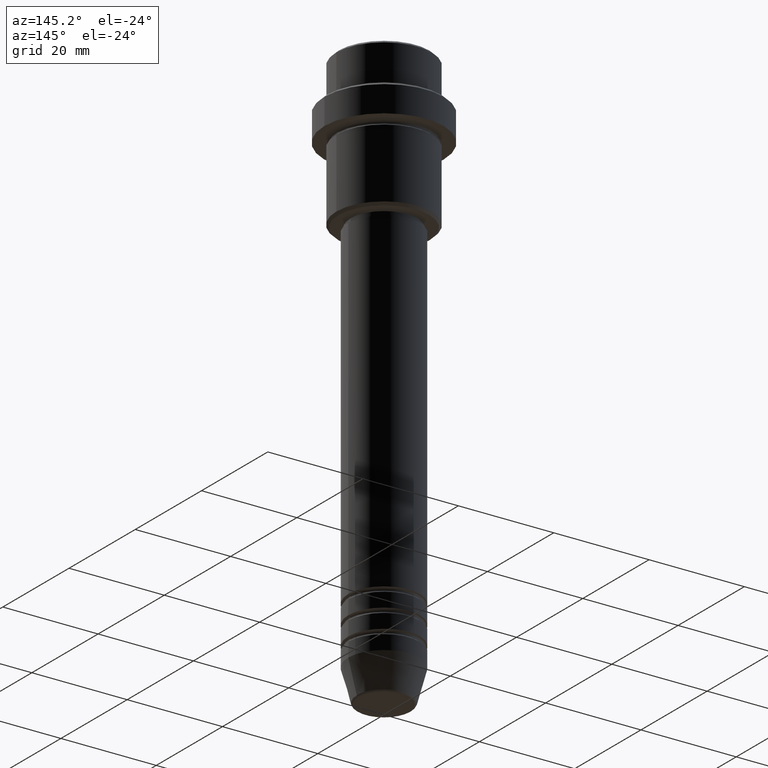
[diagram: clean part render]
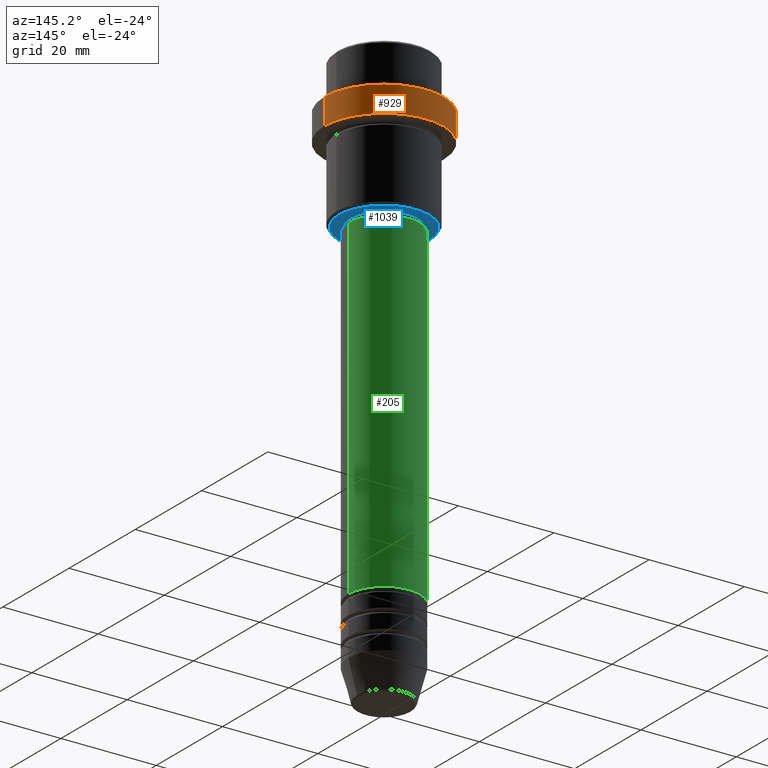
[diagram: same view with three faces highlighted in distinct colors, each labeled with its STEP entity id]
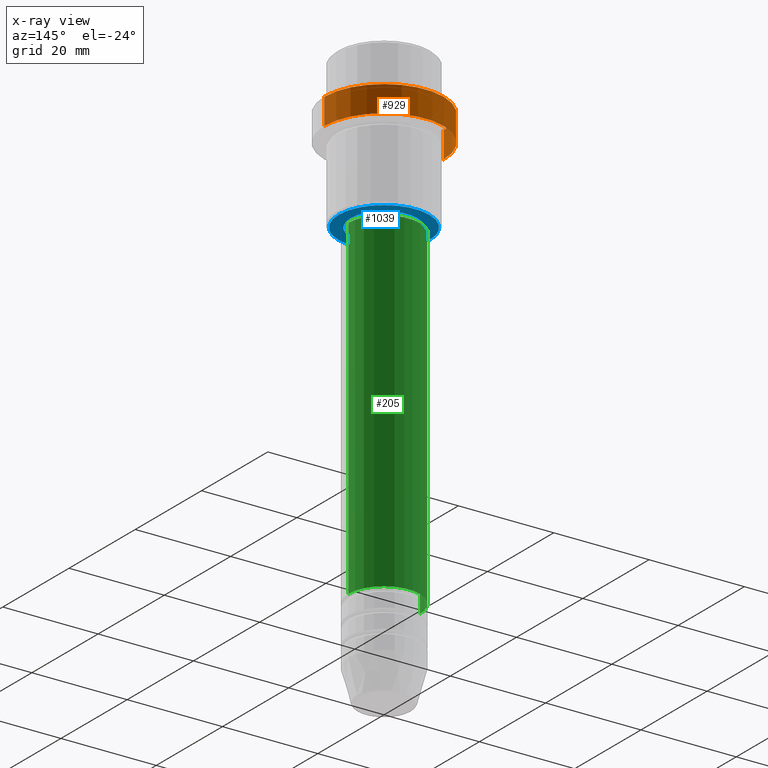
[diagram: x-ray of the same camera — body ghosted, the three highlighted faces saturated]
A machine part, auxiliary view with three faces highlighted in distinct colors.
The next image is the same camera in x-ray (body ghosted, the three faces saturated) — at least one of them is partly hidden behind the body in this view.
Their STEP definitions:

[orange] entity #929 — the highlighted cylindrical surface (partial cylindrical patch) has radius 12.5 mm, axis along (-0, -0, 1).
#37 = ORIENTED_EDGE ( 'NONE', *, *, #56, .T. ) ;
#56 = EDGE_CURVE ( 'NONE', #121, #829, #640, .T. ) ;
#58 = VECTOR ( 'NONE', #1219, 1000.000000000000000 ) ;
#74 = AXIS2_PLACEMENT_3D ( 'NONE', #1397, #385, #825 ) ;
#110 = DIRECTION ( 'NONE',  ( 1.000000000000000000, 0.000000000000000000, 0.000000000000000000 ) ) ;
#121 = VERTEX_POINT ( 'NONE', #581 ) ;
#122 = FACE_OUTER_BOUND ( 'NONE', #841, .T. ) ;
#130 = CARTESIAN_POINT ( 'NONE',  ( -12.50000000000000000, 1.530808498934191521E-15, -15.00000000000000000 ) ) ;
#186 = DIRECTION ( 'NONE',  ( -0.000000000000000000, -0.000000000000000000, 1.000000000000000000 ) ) ;
#231 = CARTESIAN_POINT ( 'NONE',  ( 0.000000000000000000, 0.000000000000000000, -9.499999999999991118 ) ) ;
#257 = LINE ( 'NONE', #1027, #58 ) ;
#285 = ORIENTED_EDGE ( 'NONE', *, *, #1412, .F. ) ;
#294 = EDGE_CURVE ( 'NONE', #1340, #1298, #352, .T. ) ;
#299 = LINE ( 'NONE', #1154, #1402 ) ;
#320 = DIRECTION ( 'NONE',  ( -0.000000000000000000, -0.000000000000000000, 1.000000000000000000 ) ) ;
#352 = CIRCLE ( 'NONE', #74, 12.50000000000000000 ) ;
#385 = DIRECTION ( 'NONE',  ( -0.000000000000000000, -0.000000000000000000, 1.000000000000000000 ) ) ;
#559 = CYLINDRICAL_SURFACE ( 'NONE', #576, 12.50000000000000000 ) ;
#576 = AXIS2_PLACEMENT_3D ( 'NONE', #975, #320, #993 ) ;
#581 = CARTESIAN_POINT ( 'NONE',  ( -12.50000000000000000, 1.530808498934191521E-15, -9.499999999999991118 ) ) ;
#640 = CIRCLE ( 'NONE', #1176, 12.50000000000000000 ) ;
#753 = DIRECTION ( 'NONE',  ( 0.000000000000000000, 0.000000000000000000, -1.000000000000000000 ) ) ;
#787 = EDGE_CURVE ( 'NONE', #1298, #121, #299, .T. ) ;
#793 = ORIENTED_EDGE ( 'NONE', *, *, #294, .T. ) ;
#825 = DIRECTION ( 'NONE',  ( 1.000000000000000000, 0.000000000000000000, 0.000000000000000000 ) ) ;
#829 = VERTEX_POINT ( 'NONE', #865 ) ;
#841 = EDGE_LOOP ( 'NONE', ( #793, #1388, #37, #285 ) ) ;
#865 = CARTESIAN_POINT ( 'NONE',  ( 12.50000000000000000, 0.000000000000000000, -9.499999999999991118 ) ) ;
#929 = ADVANCED_FACE ( 'NONE', ( #122 ), #559, .T. ) ;
#975 = CARTESIAN_POINT ( 'NONE',  ( 0.000000000000000000, 0.000000000000000000, 0.000000000000000000 ) ) ;
#993 = DIRECTION ( 'NONE',  ( 1.000000000000000000, 0.000000000000000000, 0.000000000000000000 ) ) ;
#1027 = CARTESIAN_POINT ( 'NONE',  ( 12.50000000000000000, 0.000000000000000000, 0.000000000000000000 ) ) ;
#1154 = CARTESIAN_POINT ( 'NONE',  ( -12.50000000000000000, 1.530808498934191521E-15, 0.000000000000000000 ) ) ;
#1176 = AXIS2_PLACEMENT_3D ( 'NONE', #231, #753, #110 ) ;
#1208 = CARTESIAN_POINT ( 'NONE',  ( 12.50000000000000000, 0.000000000000000000, -15.00000000000000000 ) ) ;
#1219 = DIRECTION ( 'NONE',  ( -0.000000000000000000, -0.000000000000000000, 1.000000000000000000 ) ) ;
#1298 = VERTEX_POINT ( 'NONE', #130 ) ;
#1340 = VERTEX_POINT ( 'NONE', #1208 ) ;
#1388 = ORIENTED_EDGE ( 'NONE', *, *, #787, .T. ) ;
#1397 = CARTESIAN_POINT ( 'NONE',  ( 0.000000000000000000, 0.000000000000000000, -15.00000000000000000 ) ) ;
#1402 = VECTOR ( 'NONE', #186, 1000.000000000000000 ) ;
#1412 = EDGE_CURVE ( 'NONE', #1340, #829, #257, .T. ) ;

[blue] entity #1039 — the highlighted planar face has unit normal (0, 0, -1).
#2 = VERTEX_POINT ( 'NONE', #214 ) ;
#8 = CIRCLE ( 'NONE', #1077, 9.499999999999994671 ) ;
#31 = CIRCLE ( 'NONE', #1100, 6.999999999999993783 ) ;
#42 = DIRECTION ( 'NONE',  ( -1.000000000000000000, 0.000000000000000000, -0.000000000000000000 ) ) ;
#44 = VERTEX_POINT ( 'NONE', #761 ) ;
#80 = EDGE_CURVE ( 'NONE', #2, #44, #216, .T. ) ;
#87 = ORIENTED_EDGE ( 'NONE', *, *, #80, .T. ) ;
#91 = ORIENTED_EDGE ( 'NONE', *, *, #681, .T. ) ;
#159 = DIRECTION ( 'NONE',  ( -1.000000000000000000, 0.000000000000000000, 0.000000000000000000 ) ) ;
#197 = ORIENTED_EDGE ( 'NONE', *, *, #833, .T. ) ;
#204 = CARTESIAN_POINT ( 'NONE',  ( 0.000000000000000000, 0.000000000000000000, -30.99999999999999289 ) ) ;
#214 = CARTESIAN_POINT ( 'NONE',  ( 9.499999999999994671, 0.000000000000000000, -30.99999999999999645 ) ) ;
#216 = CIRCLE ( 'NONE', #844, 9.499999999999994671 ) ;
#367 = EDGE_CURVE ( 'NONE', #610, #1249, #529, .T. ) ;
#402 = CARTESIAN_POINT ( 'NONE',  ( 0.000000000000000000, 0.000000000000000000, -30.99999999999999289 ) ) ;
#410 = CARTESIAN_POINT ( 'NONE',  ( 0.000000000000000000, 0.000000000000000000, -30.99999999999999645 ) ) ;
#494 = DIRECTION ( 'NONE',  ( 1.000000000000000000, 0.000000000000000000, 0.000000000000000000 ) ) ;
#529 = CIRCLE ( 'NONE', #1323, 6.999999999999993783 ) ;
#610 = VERTEX_POINT ( 'NONE', #786 ) ;
#681 = EDGE_CURVE ( 'NONE', #44, #2, #8, .T. ) ;
#736 = AXIS2_PLACEMENT_3D ( 'NONE', #1005, #897, #42 ) ;
#761 = CARTESIAN_POINT ( 'NONE',  ( -9.499999999999994671, 1.194030629168669075E-15, -30.99999999999999645 ) ) ;
#786 = CARTESIAN_POINT ( 'NONE',  ( -6.999999999999993783, 8.572527594031465301E-16, -30.99999999999999289 ) ) ;
#815 = DIRECTION ( 'NONE',  ( -1.000000000000000000, 0.000000000000000000, 0.000000000000000000 ) ) ;
#833 = EDGE_CURVE ( 'NONE', #1249, #610, #31, .T. ) ;
#834 = DIRECTION ( 'NONE',  ( -0.000000000000000000, -0.000000000000000000, 1.000000000000000000 ) ) ;
#844 = AXIS2_PLACEMENT_3D ( 'NONE', #1239, #1008, #159 ) ;
#886 = CARTESIAN_POINT ( 'NONE',  ( 6.999999999999993783, 0.000000000000000000, -30.99999999999999289 ) ) ;
#897 = DIRECTION ( 'NONE',  ( 0.000000000000000000, 0.000000000000000000, -1.000000000000000000 ) ) ;
#960 = DIRECTION ( 'NONE',  ( -0.000000000000000000, -0.000000000000000000, 1.000000000000000000 ) ) ;
#1005 = CARTESIAN_POINT ( 'NONE',  ( 0.000000000000000000, 9.999999999999998224, -30.99999999999999645 ) ) ;
#1008 = DIRECTION ( 'NONE',  ( 0.000000000000000000, 0.000000000000000000, -1.000000000000000000 ) ) ;
#1039 = ADVANCED_FACE ( 'NONE', ( #1331, #1346 ), #1211, .T. ) ;
#1063 = DIRECTION ( 'NONE',  ( 0.000000000000000000, 0.000000000000000000, -1.000000000000000000 ) ) ;
#1074 = EDGE_LOOP ( 'NONE', ( #87, #91 ) ) ;
#1077 = AXIS2_PLACEMENT_3D ( 'NONE', #410, #1063, #815 ) ;
#1100 = AXIS2_PLACEMENT_3D ( 'NONE', #204, #960, #1302 ) ;
#1144 = ORIENTED_EDGE ( 'NONE', *, *, #367, .T. ) ;
#1211 = PLANE ( 'NONE',  #736 ) ;
#1239 = CARTESIAN_POINT ( 'NONE',  ( 0.000000000000000000, 0.000000000000000000, -30.99999999999999645 ) ) ;
#1249 = VERTEX_POINT ( 'NONE', #886 ) ;
#1300 = EDGE_LOOP ( 'NONE', ( #197, #1144 ) ) ;
#1302 = DIRECTION ( 'NONE',  ( 1.000000000000000000, 0.000000000000000000, 0.000000000000000000 ) ) ;
#1323 = AXIS2_PLACEMENT_3D ( 'NONE', #402, #834, #494 ) ;
#1331 = FACE_OUTER_BOUND ( 'NONE', #1074, .T. ) ;
#1346 = FACE_BOUND ( 'NONE', #1300, .T. ) ;

[green] entity #205 — the highlighted cylindrical surface (partial cylindrical patch) has radius 7.5 mm, axis along (-0, -0, 1).
#45 = CARTESIAN_POINT ( 'NONE',  ( -7.500000000000000000, 9.184850993605147944E-16, -101.9999999999998721 ) ) ;
#73 = VERTEX_POINT ( 'NONE', #45 ) ;
#88 = CARTESIAN_POINT ( 'NONE',  ( 7.500000000000000000, 0.000000000000000000, 0.000000000000000000 ) ) ;
#133 = CARTESIAN_POINT ( 'NONE',  ( 0.000000000000000000, 0.000000000000000000, -31.99999999999997868 ) ) ;
#138 = CARTESIAN_POINT ( 'NONE',  ( 0.000000000000000000, 0.000000000000000000, 0.000000000000000000 ) ) ;
#139 = DIRECTION ( 'NONE',  ( 1.000000000000000000, 0.000000000000000000, 0.000000000000000000 ) ) ;
#203 = ORIENTED_EDGE ( 'NONE', *, *, #1382, .T. ) ;
#205 = ADVANCED_FACE ( 'NONE', ( #366 ), #270, .T. ) ;
#225 = VERTEX_POINT ( 'NONE', #1336 ) ;
#232 = DIRECTION ( 'NONE',  ( 1.000000000000000000, 0.000000000000000000, 0.000000000000000000 ) ) ;
#270 = CYLINDRICAL_SURFACE ( 'NONE', #1348, 7.500000000000000000 ) ;
#305 = LINE ( 'NONE', #88, #1353 ) ;
#337 = CIRCLE ( 'NONE', #1103, 7.500000000000000000 ) ;
#340 = CARTESIAN_POINT ( 'NONE',  ( 0.000000000000000000, 0.000000000000000000, -101.9999999999998721 ) ) ;
#366 = FACE_OUTER_BOUND ( 'NONE', #450, .T. ) ;
#418 = CIRCLE ( 'NONE', #1376, 7.500000000000000000 ) ;
#426 = ORIENTED_EDGE ( 'NONE', *, *, #723, .F. ) ;
#450 = EDGE_LOOP ( 'NONE', ( #203, #1395, #722, #426 ) ) ;
#498 = EDGE_CURVE ( 'NONE', #73, #225, #650, .T. ) ;
#650 = LINE ( 'NONE', #765, #986 ) ;
#651 = VERTEX_POINT ( 'NONE', #719 ) ;
#657 = DIRECTION ( 'NONE',  ( -0.000000000000000000, -0.000000000000000000, 1.000000000000000000 ) ) ;
#719 = CARTESIAN_POINT ( 'NONE',  ( 7.500000000000000000, 0.000000000000000000, -101.9999999999998721 ) ) ;
#722 = ORIENTED_EDGE ( 'NONE', *, *, #1245, .F. ) ;
#723 = EDGE_CURVE ( 'NONE', #651, #1358, #305, .T. ) ;
#762 = DIRECTION ( 'NONE',  ( -0.000000000000000000, -0.000000000000000000, 1.000000000000000000 ) ) ;
#765 = CARTESIAN_POINT ( 'NONE',  ( -7.500000000000000000, 9.184850993605147944E-16, 0.000000000000000000 ) ) ;
#794 = DIRECTION ( 'NONE',  ( -0.000000000000000000, -0.000000000000000000, 1.000000000000000000 ) ) ;
#973 = CARTESIAN_POINT ( 'NONE',  ( 7.500000000000000000, 0.000000000000000000, -31.99999999999997868 ) ) ;
#986 = VECTOR ( 'NONE', #1085, 1000.000000000000000 ) ;
#1032 = DIRECTION ( 'NONE',  ( -0.000000000000000000, -0.000000000000000000, 1.000000000000000000 ) ) ;
#1085 = DIRECTION ( 'NONE',  ( -0.000000000000000000, -0.000000000000000000, 1.000000000000000000 ) ) ;
#1103 = AXIS2_PLACEMENT_3D ( 'NONE', #340, #762, #139 ) ;
#1225 = DIRECTION ( 'NONE',  ( 1.000000000000000000, 0.000000000000000000, 0.000000000000000000 ) ) ;
#1245 = EDGE_CURVE ( 'NONE', #1358, #225, #418, .T. ) ;
#1336 = CARTESIAN_POINT ( 'NONE',  ( -7.500000000000000000, 9.184850993605147944E-16, -31.99999999999997868 ) ) ;
#1348 = AXIS2_PLACEMENT_3D ( 'NONE', #138, #794, #1225 ) ;
#1353 = VECTOR ( 'NONE', #1032, 1000.000000000000000 ) ;
#1358 = VERTEX_POINT ( 'NONE', #973 ) ;
#1376 = AXIS2_PLACEMENT_3D ( 'NONE', #133, #657, #232 ) ;
#1382 = EDGE_CURVE ( 'NONE', #651, #73, #337, .T. ) ;
#1395 = ORIENTED_EDGE ( 'NONE', *, *, #498, .T. ) ;